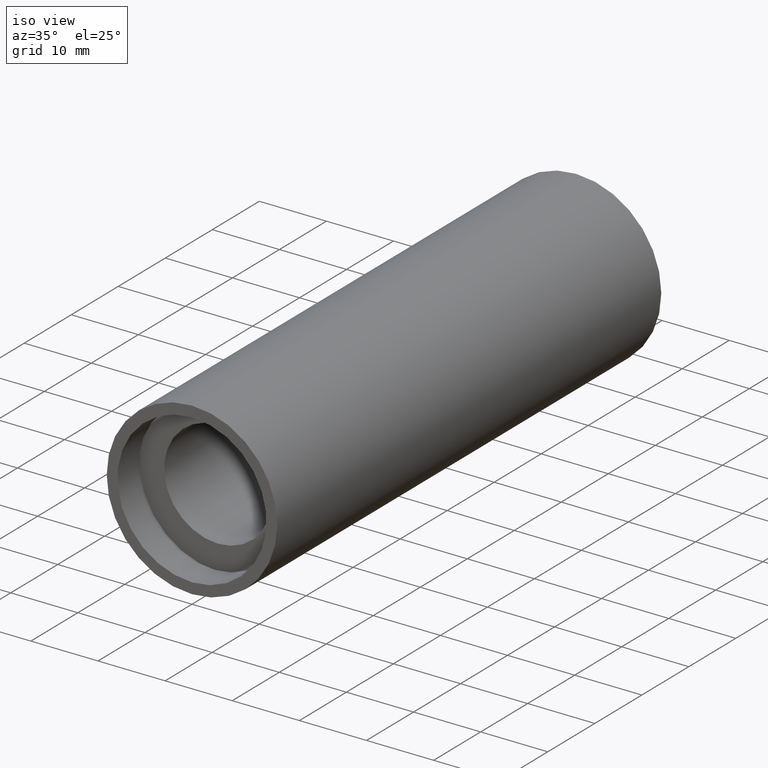
[diagram: clean part render]
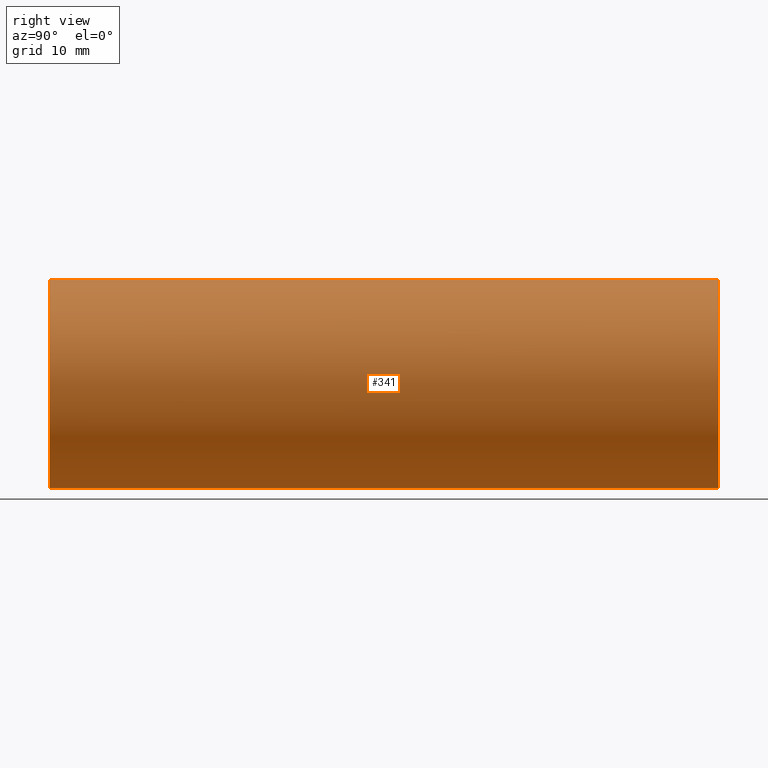
[diagram: tour spotlight — one face highlighted and labeled with its STEP entity id]
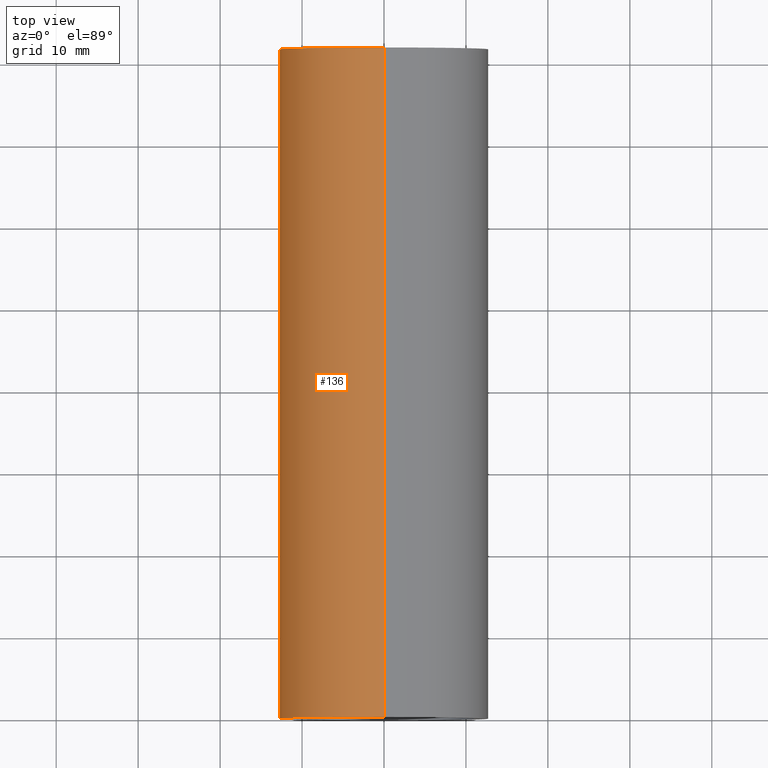
[diagram: tour spotlight — one face highlighted and labeled with its STEP entity id]
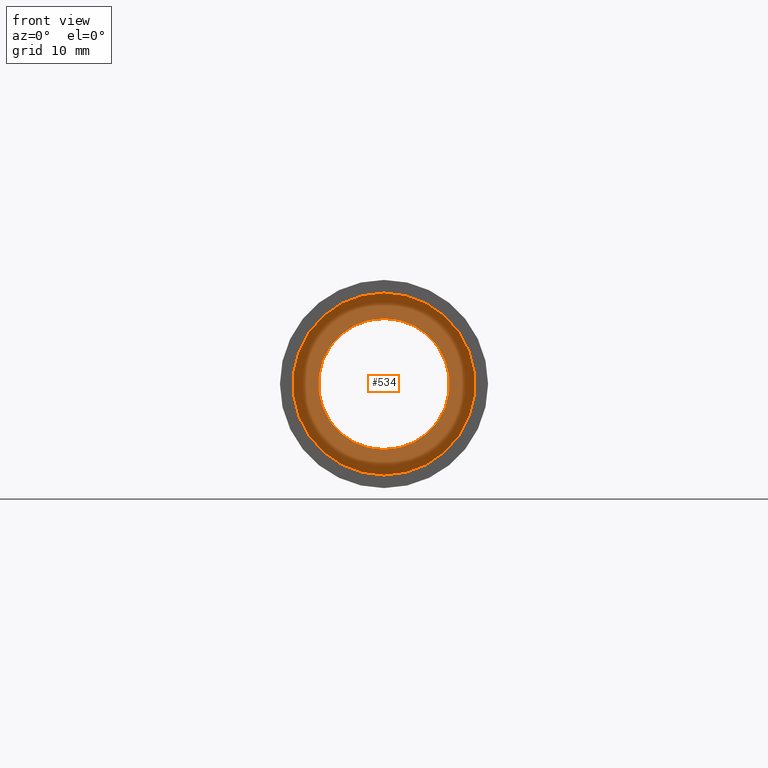
[diagram: tour spotlight — one face highlighted and labeled with its STEP entity id]
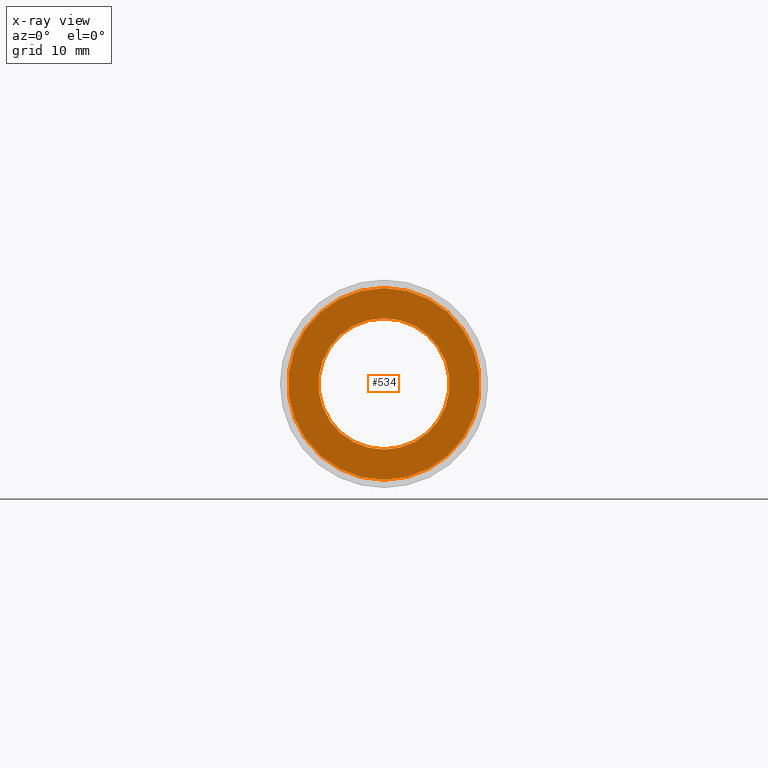
[diagram: x-ray of the same camera — body ghosted, this tour face saturated]
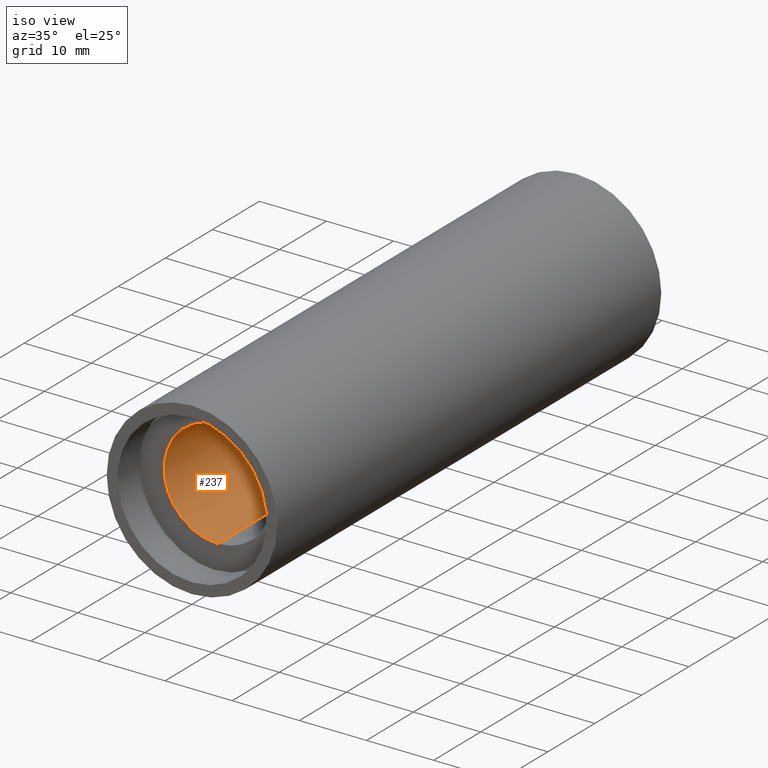
[diagram: tour spotlight — one face highlighted and labeled with its STEP entity id]
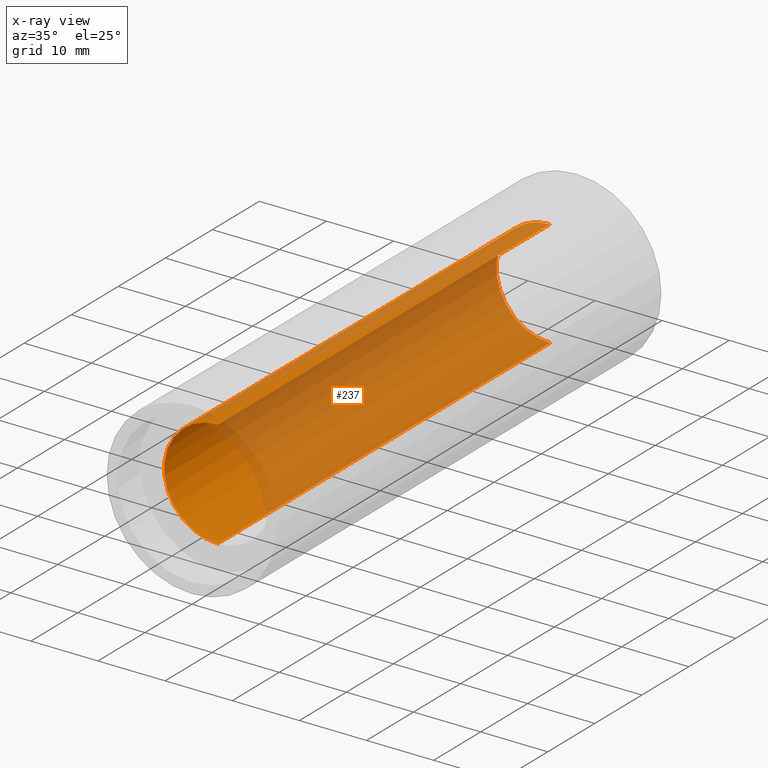
[diagram: x-ray of the same camera — body ghosted, this tour face saturated]
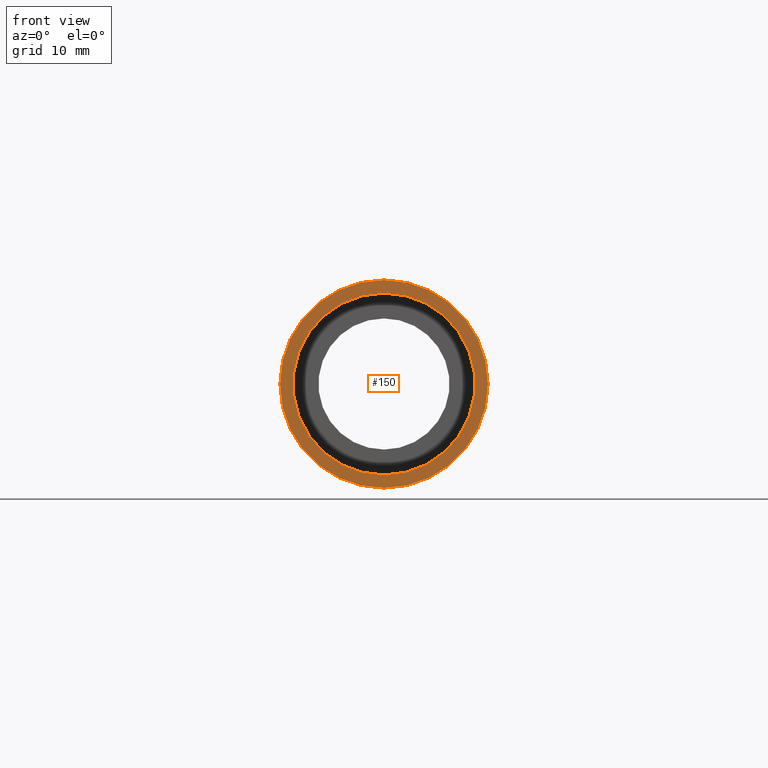
[diagram: tour spotlight — one face highlighted and labeled with its STEP entity id]
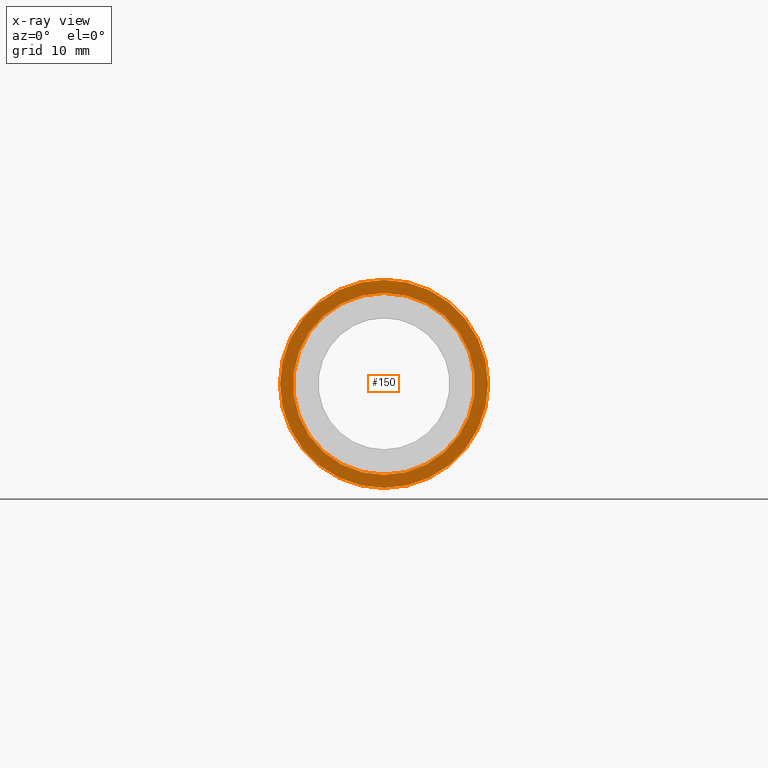
[diagram: x-ray of the same camera — body ghosted, this tour face saturated]
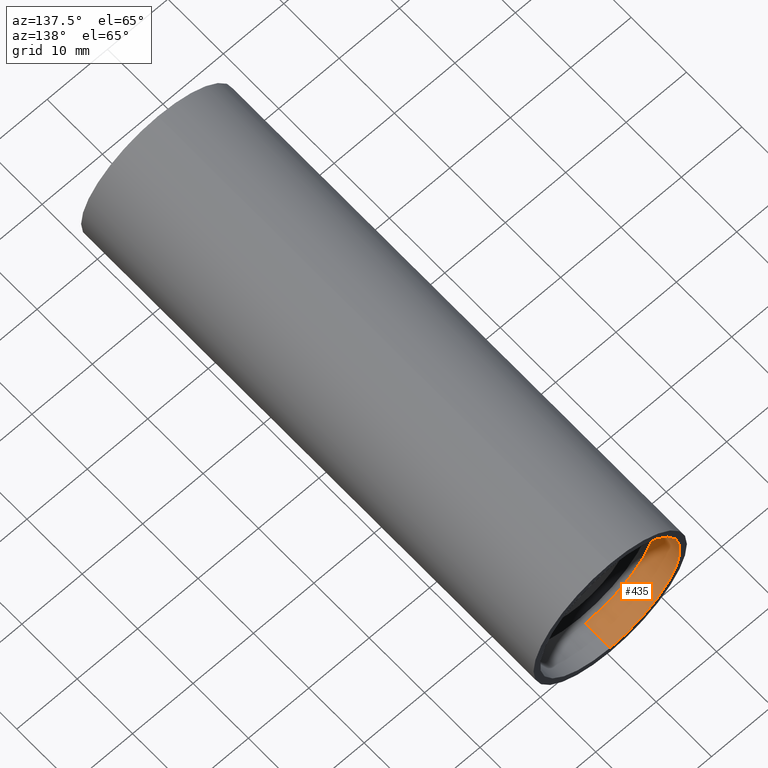
[diagram: tour spotlight — one face highlighted and labeled with its STEP entity id]
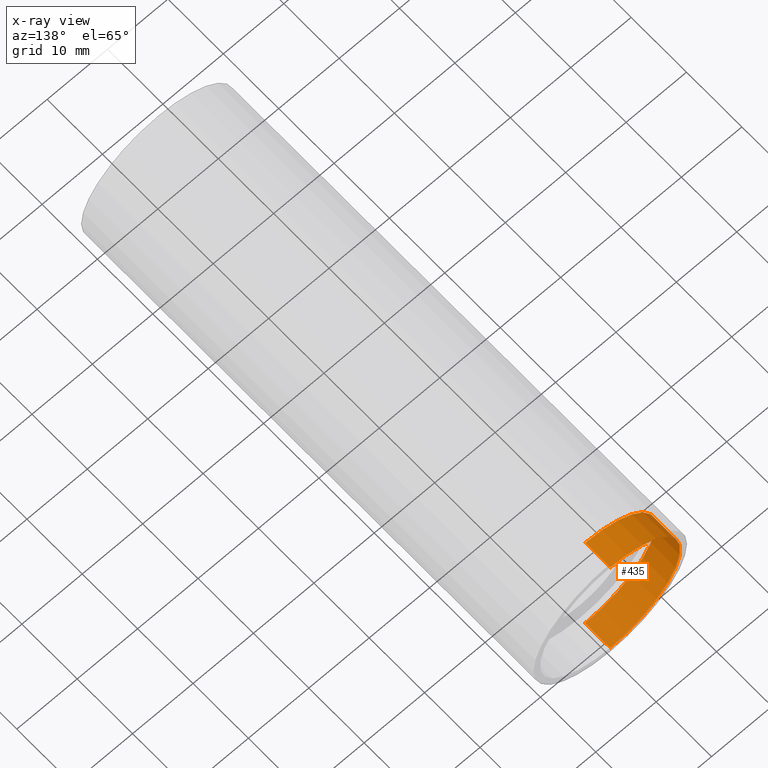
[diagram: x-ray of the same camera — body ghosted, this tour face saturated]
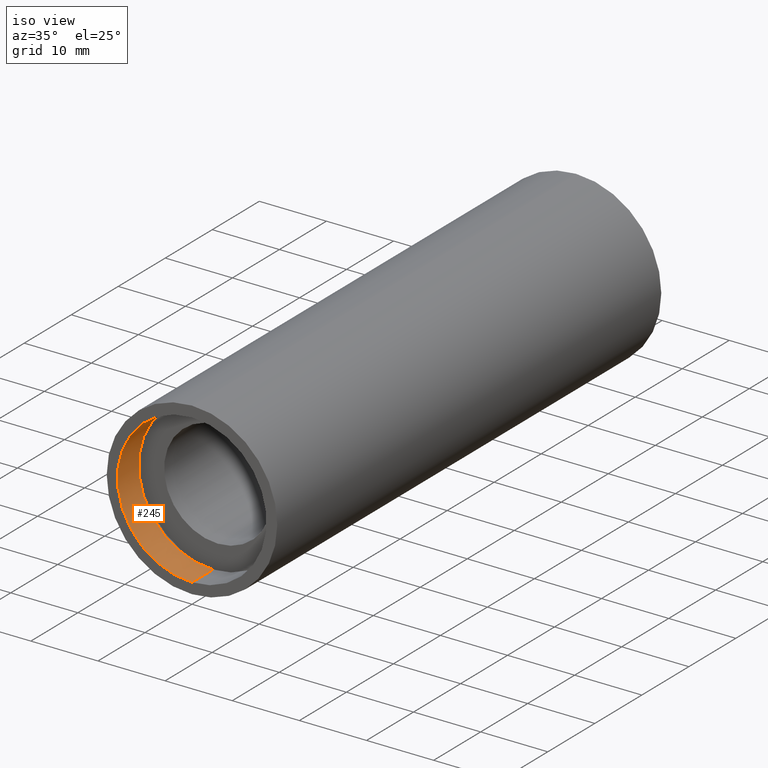
[diagram: tour spotlight — one face highlighted and labeled with its STEP entity id]
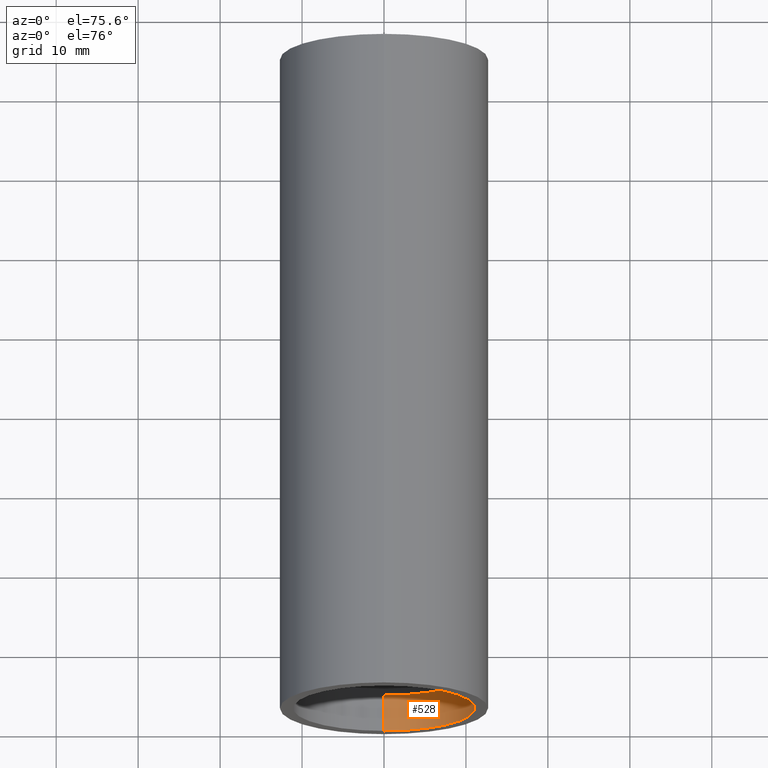
[diagram: tour spotlight — one face highlighted and labeled with its STEP entity id]
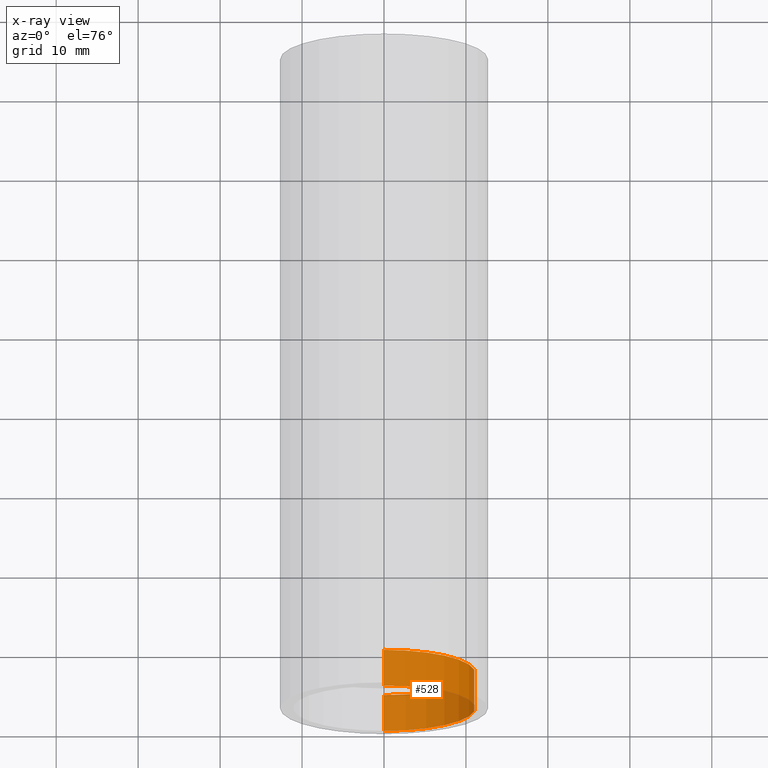
[diagram: x-ray of the same camera — body ghosted, this tour face saturated]
A machine part: a face-by-face anatomy tour. The part has 18 B-rep faces; the first image is the clean iso view, then the 8 largest visible faces are spotlighted one at a time (largest first), each with its STEP entity span.

Face 1 — right view, entity #341. In plain terms, the highlighted cylindrical surface (partial cylindrical patch) has radius 12.7 mm, axis along (-0, 1, -0).
Definition (entity closure, byte-faithful):
#25 = CARTESIAN_POINT ( 'NONE',  ( 0.0000000000000000000, -2.775557561562891400E-014, 0.0000000000000000000 ) ) ;
#31 = CYLINDRICAL_SURFACE ( 'NONE', #302, 12.70000000000001900 ) ;
#34 = LINE ( 'NONE', #94, #422 ) ;
#50 = EDGE_CURVE ( 'NONE', #433, #308, #34, .T. ) ;
#90 = AXIS2_PLACEMENT_3D ( 'NONE', #25, #405, #502 ) ;
#94 = CARTESIAN_POINT ( 'NONE',  ( 1.555301434917140800E-015, 161.3761669434274500, -12.70000000000001900 ) ) ;
#100 = ORIENTED_EDGE ( 'NONE', *, *, #118, .F. ) ;
#118 = EDGE_CURVE ( 'NONE', #378, #421, #368, .T. ) ;
#164 = DIRECTION ( 'NONE',  ( -0.0000000000000000000, 1.000000000000000000, -0.0000000000000000000 ) ) ;
#168 = DIRECTION ( 'NONE',  ( -0.0000000000000000000, 1.000000000000000000, -0.0000000000000000000 ) ) ;
#186 = DIRECTION ( 'NONE',  ( -0.0000000000000000000, 1.000000000000000000, -0.0000000000000000000 ) ) ;
#194 = DIRECTION ( 'NONE',  ( -0.0000000000000000000, 1.000000000000000000, -0.0000000000000000000 ) ) ;
#224 = ORIENTED_EDGE ( 'NONE', *, *, #424, .F. ) ;
#255 = CARTESIAN_POINT ( 'NONE',  ( 0.0000000000000000000, -2.775557561562891400E-014, 12.70000000000001900 ) ) ;
#288 = CIRCLE ( 'NONE', #90, 12.70000000000001900 ) ;
#302 = AXIS2_PLACEMENT_3D ( 'NONE', #307, #164, #601 ) ;
#307 = CARTESIAN_POINT ( 'NONE',  ( 0.0000000000000000000, 161.3761669434274500, 0.0000000000000000000 ) ) ;
#308 = VERTEX_POINT ( 'NONE', #594 ) ;
#312 = DIRECTION ( 'NONE',  ( 0.0000000000000000000, 0.0000000000000000000, 1.000000000000000000 ) ) ;
#341 = ADVANCED_FACE ( 'NONE', ( #411 ), #31, .T. ) ;
#362 = CARTESIAN_POINT ( 'NONE',  ( 1.555301434917140800E-015, -2.775557561562891400E-014, -12.70000000000001900 ) ) ;
#368 = LINE ( 'NONE', #619, #397 ) ;
#378 = VERTEX_POINT ( 'NONE', #255 ) ;
#387 = EDGE_LOOP ( 'NONE', ( #450, #618, #224, #100 ) ) ;
#397 = VECTOR ( 'NONE', #186, 1000.000000000000000 ) ;
#405 = DIRECTION ( 'NONE',  ( -0.0000000000000000000, 1.000000000000000000, -0.0000000000000000000 ) ) ;
#411 = FACE_OUTER_BOUND ( 'NONE', #387, .T. ) ;
#421 = VERTEX_POINT ( 'NONE', #606 ) ;
#422 = VECTOR ( 'NONE', #194, 1000.000000000000000 ) ;
#424 = EDGE_CURVE ( 'NONE', #421, #308, #447, .T. ) ;
#433 = VERTEX_POINT ( 'NONE', #362 ) ;
#447 = CIRCLE ( 'NONE', #466, 12.70000000000001900 ) ;
#450 = ORIENTED_EDGE ( 'NONE', *, *, #540, .T. ) ;
#452 = CARTESIAN_POINT ( 'NONE',  ( 0.0000000000000000000, 81.69999999999998900, 0.0000000000000000000 ) ) ;
#466 = AXIS2_PLACEMENT_3D ( 'NONE', #452, #168, #312 ) ;
#502 = DIRECTION ( 'NONE',  ( 0.0000000000000000000, 0.0000000000000000000, 1.000000000000000000 ) ) ;
#540 = EDGE_CURVE ( 'NONE', #378, #433, #288, .T. ) ;
#594 = CARTESIAN_POINT ( 'NONE',  ( 1.555301434917140800E-015, 81.69999999999998900, -12.70000000000001900 ) ) ;
#601 = DIRECTION ( 'NONE',  ( 0.0000000000000000000, 0.0000000000000000000, 1.000000000000000000 ) ) ;
#606 = CARTESIAN_POINT ( 'NONE',  ( 0.0000000000000000000, 81.69999999999998900, 12.70000000000001900 ) ) ;
#618 = ORIENTED_EDGE ( 'NONE', *, *, #50, .T. ) ;
#619 = CARTESIAN_POINT ( 'NONE',  ( 0.0000000000000000000, 161.3761669434274500, 12.70000000000001900 ) ) ;

Face 2 — top view, entity #136. In plain terms, the highlighted cylindrical surface (partial cylindrical patch) has radius 12.7 mm, axis along (-0, 1, -0).
Definition (entity closure, byte-faithful):
#19 = CYLINDRICAL_SURFACE ( 'NONE', #265, 12.70000000000001900 ) ;
#23 = CARTESIAN_POINT ( 'NONE',  ( 0.0000000000000000000, -2.775557561562891400E-014, 0.0000000000000000000 ) ) ;
#34 = LINE ( 'NONE', #94, #422 ) ;
#46 = DIRECTION ( 'NONE',  ( -0.0000000000000000000, 1.000000000000000000, -0.0000000000000000000 ) ) ;
#48 = CARTESIAN_POINT ( 'NONE',  ( 0.0000000000000000000, 81.69999999999998900, 0.0000000000000000000 ) ) ;
#50 = EDGE_CURVE ( 'NONE', #433, #308, #34, .T. ) ;
#94 = CARTESIAN_POINT ( 'NONE',  ( 1.555301434917140800E-015, 161.3761669434274500, -12.70000000000001900 ) ) ;
#118 = EDGE_CURVE ( 'NONE', #378, #421, #368, .T. ) ;
#136 = ADVANCED_FACE ( 'NONE', ( #300 ), #19, .T. ) ;
#145 = EDGE_CURVE ( 'NONE', #308, #421, #367, .T. ) ;
#182 = CARTESIAN_POINT ( 'NONE',  ( 0.0000000000000000000, 161.3761669434274500, 0.0000000000000000000 ) ) ;
#186 = DIRECTION ( 'NONE',  ( -0.0000000000000000000, 1.000000000000000000, -0.0000000000000000000 ) ) ;
#188 = DIRECTION ( 'NONE',  ( -0.0000000000000000000, 1.000000000000000000, -0.0000000000000000000 ) ) ;
#194 = DIRECTION ( 'NONE',  ( -0.0000000000000000000, 1.000000000000000000, -0.0000000000000000000 ) ) ;
#231 = AXIS2_PLACEMENT_3D ( 'NONE', #48, #46, #480 ) ;
#255 = CARTESIAN_POINT ( 'NONE',  ( 0.0000000000000000000, -2.775557561562891400E-014, 12.70000000000001900 ) ) ;
#256 = AXIS2_PLACEMENT_3D ( 'NONE', #23, #347, #589 ) ;
#265 = AXIS2_PLACEMENT_3D ( 'NONE', #182, #188, #520 ) ;
#271 = ORIENTED_EDGE ( 'NONE', *, *, #145, .F. ) ;
#300 = FACE_OUTER_BOUND ( 'NONE', #484, .T. ) ;
#308 = VERTEX_POINT ( 'NONE', #594 ) ;
#315 = CIRCLE ( 'NONE', #256, 12.70000000000001900 ) ;
#334 = ORIENTED_EDGE ( 'NONE', *, *, #50, .F. ) ;
#336 = EDGE_CURVE ( 'NONE', #433, #378, #315, .T. ) ;
#347 = DIRECTION ( 'NONE',  ( -0.0000000000000000000, 1.000000000000000000, -0.0000000000000000000 ) ) ;
#362 = CARTESIAN_POINT ( 'NONE',  ( 1.555301434917140800E-015, -2.775557561562891400E-014, -12.70000000000001900 ) ) ;
#367 = CIRCLE ( 'NONE', #231, 12.70000000000001900 ) ;
#368 = LINE ( 'NONE', #619, #397 ) ;
#378 = VERTEX_POINT ( 'NONE', #255 ) ;
#397 = VECTOR ( 'NONE', #186, 1000.000000000000000 ) ;
#421 = VERTEX_POINT ( 'NONE', #606 ) ;
#422 = VECTOR ( 'NONE', #194, 1000.000000000000000 ) ;
#433 = VERTEX_POINT ( 'NONE', #362 ) ;
#449 = ORIENTED_EDGE ( 'NONE', *, *, #118, .T. ) ;
#467 = ORIENTED_EDGE ( 'NONE', *, *, #336, .T. ) ;
#480 = DIRECTION ( 'NONE',  ( 0.0000000000000000000, 0.0000000000000000000, 1.000000000000000000 ) ) ;
#484 = EDGE_LOOP ( 'NONE', ( #334, #467, #449, #271 ) ) ;
#520 = DIRECTION ( 'NONE',  ( 0.0000000000000000000, 0.0000000000000000000, 1.000000000000000000 ) ) ;
#589 = DIRECTION ( 'NONE',  ( 0.0000000000000000000, 0.0000000000000000000, 1.000000000000000000 ) ) ;
#594 = CARTESIAN_POINT ( 'NONE',  ( 1.555301434917140800E-015, 81.69999999999998900, -12.70000000000001900 ) ) ;
#606 = CARTESIAN_POINT ( 'NONE',  ( 0.0000000000000000000, 81.69999999999998900, 12.70000000000001900 ) ) ;
#619 = CARTESIAN_POINT ( 'NONE',  ( 0.0000000000000000000, 161.3761669434274500, 12.70000000000001900 ) ) ;

Face 3 — front view, entity #534. An x-ray twin of the same camera follows (body ghosted, this face saturated) — the face is partly hidden behind the body. In plain terms, the highlighted planar face has unit normal (-0, 1, 0).
Definition (entity closure, byte-faithful):
#10 = DIRECTION ( 'NONE',  ( 0.0000000000000000000, 0.0000000000000000000, 1.000000000000000000 ) ) ;
#24 = FACE_BOUND ( 'NONE', #297, .T. ) ;
#26 = EDGE_CURVE ( 'NONE', #481, #436, #434, .T. ) ;
#35 = DIRECTION ( 'NONE',  ( -0.0000000000000000000, 1.000000000000000000, -0.0000000000000000000 ) ) ;
#36 = AXIS2_PLACEMENT_3D ( 'NONE', #410, #364, #75 ) ;
#55 = AXIS2_PLACEMENT_3D ( 'NONE', #171, #508, #552 ) ;
#75 = DIRECTION ( 'NONE',  ( 0.0000000000000000000, 0.0000000000000000000, 1.000000000000000000 ) ) ;
#101 = DIRECTION ( 'NONE',  ( -0.0000000000000000000, 1.000000000000000000, -0.0000000000000000000 ) ) ;
#103 = AXIS2_PLACEMENT_3D ( 'NONE', #148, #101, #10 ) ;
#119 = ORIENTED_EDGE ( 'NONE', *, *, #398, .F. ) ;
#125 = DIRECTION ( 'NONE',  ( 0.0000000000000000000, 0.0000000000000000000, 1.000000000000000000 ) ) ;
#137 = CARTESIAN_POINT ( 'NONE',  ( 0.0000000000000000000, 5.499999999999976900, 0.0000000000000000000 ) ) ;
#148 = CARTESIAN_POINT ( 'NONE',  ( 0.0000000000000000000, 5.499999999999976900, 0.0000000000000000000 ) ) ;
#171 = CARTESIAN_POINT ( 'NONE',  ( 11.70000000000001700, 5.499999999999987600, 0.0000000000000000000 ) ) ;
#176 = CARTESIAN_POINT ( 'NONE',  ( 0.0000000000000000000, 5.499999999999976900, 0.0000000000000000000 ) ) ;
#177 = CIRCLE ( 'NONE', #103, 8.000000000000019500 ) ;
#201 = ORIENTED_EDGE ( 'NONE', *, *, #26, .T. ) ;
#215 = EDGE_CURVE ( 'NONE', #436, #481, #177, .T. ) ;
#219 = DIRECTION ( 'NONE',  ( -0.0000000000000000000, 1.000000000000000000, -0.0000000000000000000 ) ) ;
#232 = CIRCLE ( 'NONE', #36, 11.70000000000001700 ) ;
#291 = ORIENTED_EDGE ( 'NONE', *, *, #363, .F. ) ;
#297 = EDGE_LOOP ( 'NONE', ( #201, #526 ) ) ;
#304 = AXIS2_PLACEMENT_3D ( 'NONE', #137, #35, #469 ) ;
#352 = FACE_OUTER_BOUND ( 'NONE', #371, .T. ) ;
#363 = EDGE_CURVE ( 'NONE', #445, #532, #380, .T. ) ;
#364 = DIRECTION ( 'NONE',  ( -0.0000000000000000000, 1.000000000000000000, -0.0000000000000000000 ) ) ;
#371 = EDGE_LOOP ( 'NONE', ( #291, #119 ) ) ;
#380 = CIRCLE ( 'NONE', #401, 11.70000000000001700 ) ;
#398 = EDGE_CURVE ( 'NONE', #532, #445, #232, .T. ) ;
#401 = AXIS2_PLACEMENT_3D ( 'NONE', #176, #219, #125 ) ;
#410 = CARTESIAN_POINT ( 'NONE',  ( 0.0000000000000000000, 5.499999999999976900, 0.0000000000000000000 ) ) ;
#434 = CIRCLE ( 'NONE', #304, 8.000000000000019500 ) ;
#436 = VERTEX_POINT ( 'NONE', #446 ) ;
#445 = VERTEX_POINT ( 'NONE', #539 ) ;
#446 = CARTESIAN_POINT ( 'NONE',  ( 9.797174393178849300E-016, 5.499999999999976900, -8.000000000000019500 ) ) ;
#454 = CARTESIAN_POINT ( 'NONE',  ( 1.432836755002405500E-015, 5.499999999999976900, -11.70000000000001700 ) ) ;
#460 = PLANE ( 'NONE',  #55 ) ;
#469 = DIRECTION ( 'NONE',  ( 0.0000000000000000000, 0.0000000000000000000, 1.000000000000000000 ) ) ;
#481 = VERTEX_POINT ( 'NONE', #582 ) ;
#508 = DIRECTION ( 'NONE',  ( -0.0000000000000000000, 1.000000000000000000, 0.0000000000000000000 ) ) ;
#526 = ORIENTED_EDGE ( 'NONE', *, *, #215, .T. ) ;
#532 = VERTEX_POINT ( 'NONE', #454 ) ;
#534 = ADVANCED_FACE ( 'NONE', ( #352, #24 ), #460, .F. ) ;
#539 = CARTESIAN_POINT ( 'NONE',  ( 0.0000000000000000000, 5.499999999999976900, 11.70000000000001700 ) ) ;
#552 = DIRECTION ( 'NONE',  ( 0.0000000000000000000, 0.0000000000000000000, 1.000000000000000000 ) ) ;
#582 = CARTESIAN_POINT ( 'NONE',  ( 0.0000000000000000000, 5.499999999999976900, 8.000000000000019500 ) ) ;

Face 4 — iso view, entity #237. An x-ray twin of the same camera follows (body ghosted, this face saturated) — the face is partly hidden behind the body. In plain terms, the highlighted cylindrical surface (partial cylindrical patch) has radius 8 mm, axis along (-0, 1, -0).
Definition (entity closure, byte-faithful):
#7 = EDGE_CURVE ( 'NONE', #382, #331, #500, .T. ) ;
#10 = DIRECTION ( 'NONE',  ( 0.0000000000000000000, 0.0000000000000000000, 1.000000000000000000 ) ) ;
#14 = DIRECTION ( 'NONE',  ( 0.0000000000000000000, 0.0000000000000000000, 1.000000000000000000 ) ) ;
#32 = LINE ( 'NONE', #349, #585 ) ;
#40 = DIRECTION ( 'NONE',  ( 0.0000000000000000000, 0.0000000000000000000, 1.000000000000000000 ) ) ;
#63 = DIRECTION ( 'NONE',  ( -0.0000000000000000000, 1.000000000000000000, -0.0000000000000000000 ) ) ;
#78 = DIRECTION ( 'NONE',  ( -0.0000000000000000000, 1.000000000000000000, -0.0000000000000000000 ) ) ;
#101 = DIRECTION ( 'NONE',  ( -0.0000000000000000000, 1.000000000000000000, -0.0000000000000000000 ) ) ;
#103 = AXIS2_PLACEMENT_3D ( 'NONE', #148, #101, #10 ) ;
#148 = CARTESIAN_POINT ( 'NONE',  ( 0.0000000000000000000, 5.499999999999976900, 0.0000000000000000000 ) ) ;
#152 = DIRECTION ( 'NONE',  ( -0.0000000000000000000, 1.000000000000000000, -0.0000000000000000000 ) ) ;
#177 = CIRCLE ( 'NONE', #103, 8.000000000000019500 ) ;
#208 = CARTESIAN_POINT ( 'NONE',  ( 9.797174393178849300E-016, 76.19999999999998900, -8.000000000000019500 ) ) ;
#215 = EDGE_CURVE ( 'NONE', #436, #481, #177, .T. ) ;
#217 = ORIENTED_EDGE ( 'NONE', *, *, #479, .F. ) ;
#237 = ADVANCED_FACE ( 'NONE', ( #281 ), #286, .F. ) ;
#244 = CARTESIAN_POINT ( 'NONE',  ( 0.0000000000000000000, 161.3761669434274500, 0.0000000000000000000 ) ) ;
#281 = FACE_OUTER_BOUND ( 'NONE', #313, .T. ) ;
#286 = CYLINDRICAL_SURFACE ( 'NONE', #351, 8.000000000000019500 ) ;
#313 = EDGE_LOOP ( 'NONE', ( #355, #325, #324, #217 ) ) ;
#324 = ORIENTED_EDGE ( 'NONE', *, *, #7, .T. ) ;
#325 = ORIENTED_EDGE ( 'NONE', *, *, #432, .T. ) ;
#331 = VERTEX_POINT ( 'NONE', #496 ) ;
#349 = CARTESIAN_POINT ( 'NONE',  ( 0.0000000000000000000, 161.3761669434274500, 8.000000000000019500 ) ) ;
#351 = AXIS2_PLACEMENT_3D ( 'NONE', #244, #152, #14 ) ;
#355 = ORIENTED_EDGE ( 'NONE', *, *, #215, .F. ) ;
#369 = VECTOR ( 'NONE', #78, 1000.000000000000000 ) ;
#382 = VERTEX_POINT ( 'NONE', #208 ) ;
#420 = DIRECTION ( 'NONE',  ( -0.0000000000000000000, 1.000000000000000000, -0.0000000000000000000 ) ) ;
#432 = EDGE_CURVE ( 'NONE', #436, #382, #464, .T. ) ;
#436 = VERTEX_POINT ( 'NONE', #446 ) ;
#446 = CARTESIAN_POINT ( 'NONE',  ( 9.797174393178849300E-016, 5.499999999999976900, -8.000000000000019500 ) ) ;
#464 = LINE ( 'NONE', #554, #369 ) ;
#478 = AXIS2_PLACEMENT_3D ( 'NONE', #617, #420, #40 ) ;
#479 = EDGE_CURVE ( 'NONE', #481, #331, #32, .T. ) ;
#481 = VERTEX_POINT ( 'NONE', #582 ) ;
#496 = CARTESIAN_POINT ( 'NONE',  ( 0.0000000000000000000, 76.19999999999998900, 8.000000000000019500 ) ) ;
#500 = CIRCLE ( 'NONE', #478, 8.000000000000019500 ) ;
#554 = CARTESIAN_POINT ( 'NONE',  ( 9.797174393178849300E-016, 161.3761669434274500, -8.000000000000019500 ) ) ;
#582 = CARTESIAN_POINT ( 'NONE',  ( 0.0000000000000000000, 5.499999999999976900, 8.000000000000019500 ) ) ;
#585 = VECTOR ( 'NONE', #63, 1000.000000000000000 ) ;
#617 = CARTESIAN_POINT ( 'NONE',  ( 0.0000000000000000000, 76.19999999999998900, 0.0000000000000000000 ) ) ;

Face 5 — front view, entity #150. An x-ray twin of the same camera follows (body ghosted, this face saturated) — the face is partly hidden behind the body. In plain terms, the highlighted planar face has unit normal (-0, 1, 0).
Definition (entity closure, byte-faithful):
#11 = CARTESIAN_POINT ( 'NONE',  ( 1.359357947053564900E-015, -2.775557561562891400E-014, -11.10000000000002300 ) ) ;
#23 = CARTESIAN_POINT ( 'NONE',  ( 0.0000000000000000000, -2.775557561562891400E-014, 0.0000000000000000000 ) ) ;
#25 = CARTESIAN_POINT ( 'NONE',  ( 0.0000000000000000000, -2.775557561562891400E-014, 0.0000000000000000000 ) ) ;
#29 = FACE_BOUND ( 'NONE', #591, .T. ) ;
#90 = AXIS2_PLACEMENT_3D ( 'NONE', #25, #405, #502 ) ;
#91 = AXIS2_PLACEMENT_3D ( 'NONE', #156, #161, #551 ) ;
#105 = DIRECTION ( 'NONE',  ( 0.0000000000000000000, 0.0000000000000000000, 1.000000000000000000 ) ) ;
#106 = DIRECTION ( 'NONE',  ( -0.0000000000000000000, 1.000000000000000000, 0.0000000000000000000 ) ) ;
#114 = AXIS2_PLACEMENT_3D ( 'NONE', #581, #106, #490 ) ;
#139 = ORIENTED_EDGE ( 'NONE', *, *, #336, .F. ) ;
#142 = PLANE ( 'NONE',  #114 ) ;
#150 = ADVANCED_FACE ( 'NONE', ( #572, #29 ), #142, .F. ) ;
#156 = CARTESIAN_POINT ( 'NONE',  ( 0.0000000000000000000, -2.775557561562891400E-014, 0.0000000000000000000 ) ) ;
#160 = ORIENTED_EDGE ( 'NONE', *, *, #540, .F. ) ;
#161 = DIRECTION ( 'NONE',  ( -0.0000000000000000000, 1.000000000000000000, -0.0000000000000000000 ) ) ;
#233 = CARTESIAN_POINT ( 'NONE',  ( 0.0000000000000000000, -2.775557561562891400E-014, 11.10000000000002300 ) ) ;
#238 = VERTEX_POINT ( 'NONE', #233 ) ;
#253 = DIRECTION ( 'NONE',  ( -0.0000000000000000000, 1.000000000000000000, -0.0000000000000000000 ) ) ;
#255 = CARTESIAN_POINT ( 'NONE',  ( 0.0000000000000000000, -2.775557561562891400E-014, 12.70000000000001900 ) ) ;
#256 = AXIS2_PLACEMENT_3D ( 'NONE', #23, #347, #589 ) ;
#288 = CIRCLE ( 'NONE', #90, 12.70000000000001900 ) ;
#293 = CARTESIAN_POINT ( 'NONE',  ( 0.0000000000000000000, -2.775557561562891400E-014, 0.0000000000000000000 ) ) ;
#315 = CIRCLE ( 'NONE', #256, 12.70000000000001900 ) ;
#327 = EDGE_CURVE ( 'NONE', #344, #238, #457, .T. ) ;
#336 = EDGE_CURVE ( 'NONE', #433, #378, #315, .T. ) ;
#344 = VERTEX_POINT ( 'NONE', #11 ) ;
#347 = DIRECTION ( 'NONE',  ( -0.0000000000000000000, 1.000000000000000000, -0.0000000000000000000 ) ) ;
#362 = CARTESIAN_POINT ( 'NONE',  ( 1.555301434917140800E-015, -2.775557561562891400E-014, -12.70000000000001900 ) ) ;
#373 = EDGE_LOOP ( 'NONE', ( #160, #139 ) ) ;
#378 = VERTEX_POINT ( 'NONE', #255 ) ;
#405 = DIRECTION ( 'NONE',  ( -0.0000000000000000000, 1.000000000000000000, -0.0000000000000000000 ) ) ;
#409 = ORIENTED_EDGE ( 'NONE', *, *, #327, .T. ) ;
#433 = VERTEX_POINT ( 'NONE', #362 ) ;
#457 = CIRCLE ( 'NONE', #91, 11.10000000000002300 ) ;
#468 = EDGE_CURVE ( 'NONE', #238, #344, #550, .T. ) ;
#490 = DIRECTION ( 'NONE',  ( 0.0000000000000000000, 0.0000000000000000000, 1.000000000000000000 ) ) ;
#502 = DIRECTION ( 'NONE',  ( 0.0000000000000000000, 0.0000000000000000000, 1.000000000000000000 ) ) ;
#540 = EDGE_CURVE ( 'NONE', #378, #433, #288, .T. ) ;
#550 = CIRCLE ( 'NONE', #556, 11.10000000000002300 ) ;
#551 = DIRECTION ( 'NONE',  ( 0.0000000000000000000, 0.0000000000000000000, 1.000000000000000000 ) ) ;
#556 = AXIS2_PLACEMENT_3D ( 'NONE', #293, #253, #105 ) ;
#568 = ORIENTED_EDGE ( 'NONE', *, *, #468, .T. ) ;
#572 = FACE_OUTER_BOUND ( 'NONE', #373, .T. ) ;
#581 = CARTESIAN_POINT ( 'NONE',  ( 11.10000000000002300, -1.590039098016662300E-014, 0.0000000000000000000 ) ) ;
#589 = DIRECTION ( 'NONE',  ( 0.0000000000000000000, 0.0000000000000000000, 1.000000000000000000 ) ) ;
#591 = EDGE_LOOP ( 'NONE', ( #568, #409 ) ) ;

Face 6 — auxiliary view, entity #435. An x-ray twin of the same camera follows (body ghosted, this face saturated) — the face is partly hidden behind the body. In plain terms, the highlighted cylindrical surface (partial cylindrical patch) has radius 11.6 mm, axis along (-0, 1, -0).
Definition (entity closure, byte-faithful):
#5 = VERTEX_POINT ( 'NONE', #463 ) ;
#15 = DIRECTION ( 'NONE',  ( -0.0000000000000000000, 1.000000000000000000, -0.0000000000000000000 ) ) ;
#44 = FACE_OUTER_BOUND ( 'NONE', #184, .T. ) ;
#54 = VERTEX_POINT ( 'NONE', #427 ) ;
#69 = ORIENTED_EDGE ( 'NONE', *, *, #146, .F. ) ;
#87 = VERTEX_POINT ( 'NONE', #418 ) ;
#141 = VERTEX_POINT ( 'NONE', #470 ) ;
#146 = EDGE_CURVE ( 'NONE', #54, #141, #519, .T. ) ;
#157 = DIRECTION ( 'NONE',  ( -0.0000000000000000000, 1.000000000000000000, -0.0000000000000000000 ) ) ;
#163 = CARTESIAN_POINT ( 'NONE',  ( 0.0000000000000000000, 161.3761669434274500, 0.0000000000000000000 ) ) ;
#181 = CIRCLE ( 'NONE', #517, 11.60000000000003200 ) ;
#184 = EDGE_LOOP ( 'NONE', ( #588, #230, #198, #69 ) ) ;
#189 = CIRCLE ( 'NONE', #612, 11.60000000000003300 ) ;
#198 = ORIENTED_EDGE ( 'NONE', *, *, #442, .T. ) ;
#206 = CARTESIAN_POINT ( 'NONE',  ( 0.0000000000000000000, 81.69999999999998900, 0.0000000000000000000 ) ) ;
#230 = ORIENTED_EDGE ( 'NONE', *, *, #518, .T. ) ;
#240 = VECTOR ( 'NONE', #527, 1000.000000000000000 ) ;
#248 = AXIS2_PLACEMENT_3D ( 'NONE', #163, #157, #498 ) ;
#250 = DIRECTION ( 'NONE',  ( 0.0000000000000000000, 0.0000000000000000000, 1.000000000000000000 ) ) ;
#257 = LINE ( 'NONE', #391, #512 ) ;
#263 = DIRECTION ( 'NONE',  ( 0.0000000000000000000, 0.0000000000000000000, 1.000000000000000000 ) ) ;
#292 = EDGE_CURVE ( 'NONE', #87, #54, #189, .T. ) ;
#303 = DIRECTION ( 'NONE',  ( -0.0000000000000000000, 1.000000000000000000, -0.0000000000000000000 ) ) ;
#332 = CARTESIAN_POINT ( 'NONE',  ( 0.0000000000000000000, 161.3761669434274500, 11.60000000000003300 ) ) ;
#391 = CARTESIAN_POINT ( 'NONE',  ( 1.420590287010933900E-015, 161.3761669434274500, -11.60000000000003300 ) ) ;
#412 = CYLINDRICAL_SURFACE ( 'NONE', #248, 11.60000000000003300 ) ;
#418 = CARTESIAN_POINT ( 'NONE',  ( 1.420590287010933900E-015, 77.19999999999998900, -11.60000000000003300 ) ) ;
#427 = CARTESIAN_POINT ( 'NONE',  ( 0.0000000000000000000, 77.19999999999998900, 11.60000000000003300 ) ) ;
#435 = ADVANCED_FACE ( 'NONE', ( #44 ), #412, .F. ) ;
#442 = EDGE_CURVE ( 'NONE', #5, #141, #181, .T. ) ;
#463 = CARTESIAN_POINT ( 'NONE',  ( 1.420590287010933700E-015, 81.69999999999998900, -11.60000000000003200 ) ) ;
#470 = CARTESIAN_POINT ( 'NONE',  ( 0.0000000000000000000, 81.69999999999998900, 11.60000000000003200 ) ) ;
#489 = DIRECTION ( 'NONE',  ( -0.0000000000000000000, 1.000000000000000000, -0.0000000000000000000 ) ) ;
#498 = DIRECTION ( 'NONE',  ( 0.0000000000000000000, 0.0000000000000000000, 1.000000000000000000 ) ) ;
#512 = VECTOR ( 'NONE', #489, 1000.000000000000000 ) ;
#517 = AXIS2_PLACEMENT_3D ( 'NONE', #206, #15, #250 ) ;
#518 = EDGE_CURVE ( 'NONE', #87, #5, #257, .T. ) ;
#519 = LINE ( 'NONE', #332, #240 ) ;
#527 = DIRECTION ( 'NONE',  ( -0.0000000000000000000, 1.000000000000000000, -0.0000000000000000000 ) ) ;
#588 = ORIENTED_EDGE ( 'NONE', *, *, #292, .F. ) ;
#596 = CARTESIAN_POINT ( 'NONE',  ( 0.0000000000000000000, 77.19999999999998900, 0.0000000000000000000 ) ) ;
#612 = AXIS2_PLACEMENT_3D ( 'NONE', #596, #303, #263 ) ;

Face 7 — iso view, entity #245. In plain terms, the highlighted cylindrical surface (partial cylindrical patch) has radius 11.1 mm, axis along (-0, 1, -0).
Definition (entity closure, byte-faithful):
#11 = CARTESIAN_POINT ( 'NONE',  ( 1.359357947053564900E-015, -2.775557561562891400E-014, -11.10000000000002300 ) ) ;
#13 = DIRECTION ( 'NONE',  ( -0.0000000000000000000, 1.000000000000000000, -0.0000000000000000000 ) ) ;
#21 = DIRECTION ( 'NONE',  ( -0.0000000000000000000, 1.000000000000000000, -0.0000000000000000000 ) ) ;
#33 = VERTEX_POINT ( 'NONE', #571 ) ;
#52 = CARTESIAN_POINT ( 'NONE',  ( 0.0000000000000000000, 161.3761669434274500, 11.10000000000002100 ) ) ;
#77 = CARTESIAN_POINT ( 'NONE',  ( 0.0000000000000000000, 4.499999999999976000, 11.10000000000001900 ) ) ;
#91 = AXIS2_PLACEMENT_3D ( 'NONE', #156, #161, #551 ) ;
#116 = FACE_OUTER_BOUND ( 'NONE', #577, .T. ) ;
#121 = DIRECTION ( 'NONE',  ( 0.0000000000000000000, 0.0000000000000000000, 1.000000000000000000 ) ) ;
#124 = AXIS2_PLACEMENT_3D ( 'NONE', #361, #559, #121 ) ;
#126 = AXIS2_PLACEMENT_3D ( 'NONE', #402, #13, #209 ) ;
#156 = CARTESIAN_POINT ( 'NONE',  ( 0.0000000000000000000, -2.775557561562891400E-014, 0.0000000000000000000 ) ) ;
#161 = DIRECTION ( 'NONE',  ( -0.0000000000000000000, 1.000000000000000000, -0.0000000000000000000 ) ) ;
#202 = EDGE_CURVE ( 'NONE', #238, #580, #272, .T. ) ;
#209 = DIRECTION ( 'NONE',  ( 0.0000000000000000000, 0.0000000000000000000, 1.000000000000000000 ) ) ;
#233 = CARTESIAN_POINT ( 'NONE',  ( 0.0000000000000000000, -2.775557561562891400E-014, 11.10000000000002300 ) ) ;
#238 = VERTEX_POINT ( 'NONE', #233 ) ;
#243 = ORIENTED_EDGE ( 'NONE', *, *, #574, .T. ) ;
#245 = ADVANCED_FACE ( 'NONE', ( #116 ), #615, .F. ) ;
#272 = LINE ( 'NONE', #52, #388 ) ;
#323 = EDGE_CURVE ( 'NONE', #344, #33, #329, .T. ) ;
#327 = EDGE_CURVE ( 'NONE', #344, #238, #457, .T. ) ;
#329 = LINE ( 'NONE', #399, #511 ) ;
#330 = CIRCLE ( 'NONE', #124, 11.10000000000001900 ) ;
#340 = DIRECTION ( 'NONE',  ( -0.0000000000000000000, 1.000000000000000000, -0.0000000000000000000 ) ) ;
#344 = VERTEX_POINT ( 'NONE', #11 ) ;
#361 = CARTESIAN_POINT ( 'NONE',  ( 0.0000000000000000000, 4.499999999999976000, 0.0000000000000000000 ) ) ;
#388 = VECTOR ( 'NONE', #340, 1000.000000000000000 ) ;
#399 = CARTESIAN_POINT ( 'NONE',  ( 1.359357947053564500E-015, 161.3761669434274500, -11.10000000000002100 ) ) ;
#402 = CARTESIAN_POINT ( 'NONE',  ( 0.0000000000000000000, 161.3761669434274500, 0.0000000000000000000 ) ) ;
#457 = CIRCLE ( 'NONE', #91, 11.10000000000002300 ) ;
#511 = VECTOR ( 'NONE', #21, 1000.000000000000000 ) ;
#543 = ORIENTED_EDGE ( 'NONE', *, *, #327, .F. ) ;
#551 = DIRECTION ( 'NONE',  ( 0.0000000000000000000, 0.0000000000000000000, 1.000000000000000000 ) ) ;
#559 = DIRECTION ( 'NONE',  ( -0.0000000000000000000, 1.000000000000000000, -0.0000000000000000000 ) ) ;
#571 = CARTESIAN_POINT ( 'NONE',  ( 1.359357947053564500E-015, 4.499999999999976000, -11.10000000000001900 ) ) ;
#574 = EDGE_CURVE ( 'NONE', #33, #580, #330, .T. ) ;
#577 = EDGE_LOOP ( 'NONE', ( #543, #614, #243, #579 ) ) ;
#579 = ORIENTED_EDGE ( 'NONE', *, *, #202, .F. ) ;
#580 = VERTEX_POINT ( 'NONE', #77 ) ;
#614 = ORIENTED_EDGE ( 'NONE', *, *, #323, .T. ) ;
#615 = CYLINDRICAL_SURFACE ( 'NONE', #126, 11.10000000000002100 ) ;

Face 8 — auxiliary view, entity #528. An x-ray twin of the same camera follows (body ghosted, this face saturated) — the face is partly hidden behind the body. In plain terms, the highlighted cylindrical surface (partial cylindrical patch) has radius 11.1 mm, axis along (-0, 1, -0).
Definition (entity closure, byte-faithful):
#11 = CARTESIAN_POINT ( 'NONE',  ( 1.359357947053564900E-015, -2.775557561562891400E-014, -11.10000000000002300 ) ) ;
#21 = DIRECTION ( 'NONE',  ( -0.0000000000000000000, 1.000000000000000000, -0.0000000000000000000 ) ) ;
#33 = VERTEX_POINT ( 'NONE', #571 ) ;
#52 = CARTESIAN_POINT ( 'NONE',  ( 0.0000000000000000000, 161.3761669434274500, 11.10000000000002100 ) ) ;
#77 = CARTESIAN_POINT ( 'NONE',  ( 0.0000000000000000000, 4.499999999999976000, 11.10000000000001900 ) ) ;
#105 = DIRECTION ( 'NONE',  ( 0.0000000000000000000, 0.0000000000000000000, 1.000000000000000000 ) ) ;
#162 = ORIENTED_EDGE ( 'NONE', *, *, #468, .F. ) ;
#202 = EDGE_CURVE ( 'NONE', #238, #580, #272, .T. ) ;
#221 = AXIS2_PLACEMENT_3D ( 'NONE', #389, #492, #354 ) ;
#227 = AXIS2_PLACEMENT_3D ( 'NONE', #356, #541, #350 ) ;
#233 = CARTESIAN_POINT ( 'NONE',  ( 0.0000000000000000000, -2.775557561562891400E-014, 11.10000000000002300 ) ) ;
#238 = VERTEX_POINT ( 'NONE', #233 ) ;
#253 = DIRECTION ( 'NONE',  ( -0.0000000000000000000, 1.000000000000000000, -0.0000000000000000000 ) ) ;
#272 = LINE ( 'NONE', #52, #388 ) ;
#289 = EDGE_CURVE ( 'NONE', #580, #33, #537, .T. ) ;
#293 = CARTESIAN_POINT ( 'NONE',  ( 0.0000000000000000000, -2.775557561562891400E-014, 0.0000000000000000000 ) ) ;
#323 = EDGE_CURVE ( 'NONE', #344, #33, #329, .T. ) ;
#329 = LINE ( 'NONE', #399, #511 ) ;
#340 = DIRECTION ( 'NONE',  ( -0.0000000000000000000, 1.000000000000000000, -0.0000000000000000000 ) ) ;
#344 = VERTEX_POINT ( 'NONE', #11 ) ;
#350 = DIRECTION ( 'NONE',  ( 0.0000000000000000000, 0.0000000000000000000, 1.000000000000000000 ) ) ;
#354 = DIRECTION ( 'NONE',  ( 0.0000000000000000000, 0.0000000000000000000, 1.000000000000000000 ) ) ;
#356 = CARTESIAN_POINT ( 'NONE',  ( 0.0000000000000000000, 4.499999999999976000, 0.0000000000000000000 ) ) ;
#381 = CYLINDRICAL_SURFACE ( 'NONE', #221, 11.10000000000002100 ) ;
#388 = VECTOR ( 'NONE', #340, 1000.000000000000000 ) ;
#389 = CARTESIAN_POINT ( 'NONE',  ( 0.0000000000000000000, 161.3761669434274500, 0.0000000000000000000 ) ) ;
#399 = CARTESIAN_POINT ( 'NONE',  ( 1.359357947053564500E-015, 161.3761669434274500, -11.10000000000002100 ) ) ;
#413 = ORIENTED_EDGE ( 'NONE', *, *, #289, .T. ) ;
#429 = ORIENTED_EDGE ( 'NONE', *, *, #323, .F. ) ;
#453 = ORIENTED_EDGE ( 'NONE', *, *, #202, .T. ) ;
#468 = EDGE_CURVE ( 'NONE', #238, #344, #550, .T. ) ;
#492 = DIRECTION ( 'NONE',  ( -0.0000000000000000000, 1.000000000000000000, -0.0000000000000000000 ) ) ;
#511 = VECTOR ( 'NONE', #21, 1000.000000000000000 ) ;
#528 = ADVANCED_FACE ( 'NONE', ( #611 ), #381, .F. ) ;
#537 = CIRCLE ( 'NONE', #227, 11.10000000000001900 ) ;
#541 = DIRECTION ( 'NONE',  ( -0.0000000000000000000, 1.000000000000000000, -0.0000000000000000000 ) ) ;
#550 = CIRCLE ( 'NONE', #556, 11.10000000000002300 ) ;
#556 = AXIS2_PLACEMENT_3D ( 'NONE', #293, #253, #105 ) ;
#565 = EDGE_LOOP ( 'NONE', ( #429, #162, #453, #413 ) ) ;
#571 = CARTESIAN_POINT ( 'NONE',  ( 1.359357947053564500E-015, 4.499999999999976000, -11.10000000000001900 ) ) ;
#580 = VERTEX_POINT ( 'NONE', #77 ) ;
#611 = FACE_OUTER_BOUND ( 'NONE', #565, .T. ) ;